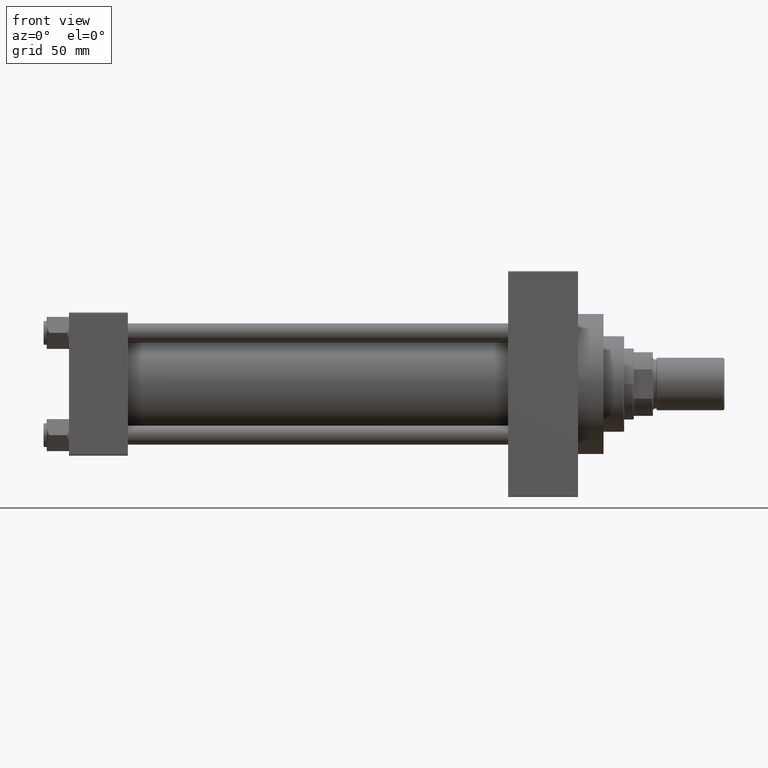
[diagram: clean part render]
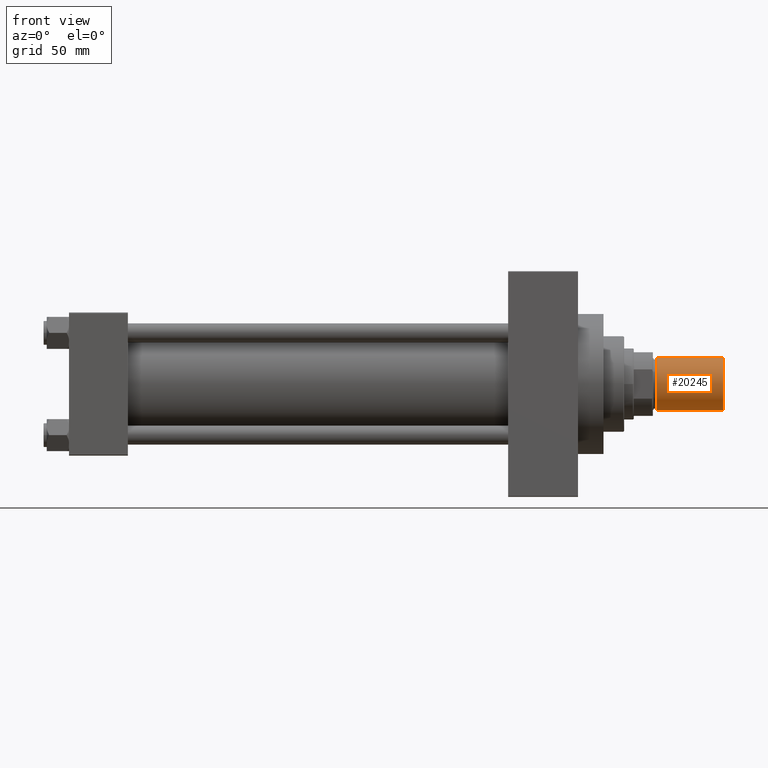
[diagram: same view with one face highlighted and labeled with its STEP entity id]
A machine part, front view. The second image highlights one B-rep face of the part: STEP entity #20245.
In plain terms, the highlighted cylindrical surface (edge-blend (fillet) strip) has radius 16.5 mm, axis along (1, -0, -0).
Its self-contained STEP definition (entity closure, byte-faithful):
#662 = EDGE_CURVE ( 'NONE', #25912, #44295, #40154, .T. ) ;
#4295 = ORIENTED_EDGE ( 'NONE', *, *, #662, .F. ) ;
#4475 = DIRECTION ( 'NONE',  ( -0.000000000000000000, -0.000000000000000000, -1.000000000000000000 ) ) ;
#6910 = DIRECTION ( 'NONE',  ( -0.000000000000000000, -0.000000000000000000, -1.000000000000000000 ) ) ;
#7967 = AXIS2_PLACEMENT_3D ( 'NONE', #15719, #23894, #45584 ) ;
#9479 = ORIENTED_EDGE ( 'NONE', *, *, #23551, .F. ) ;
#10423 = VECTOR ( 'NONE', #32250, 1000.000000000000000 ) ;
#10634 = AXIS2_PLACEMENT_3D ( 'NONE', #18220, #33136, #33380 ) ;
#10747 = CARTESIAN_POINT ( 'NONE',  ( 16.50000000000000000, 2.020667218593133100E-15, 42.50000000000000000 ) ) ;
#12692 = ORIENTED_EDGE ( 'NONE', *, *, #16546, .T. ) ;
#12951 = CIRCLE ( 'NONE', #10634, 16.50000000000000000 ) ;
#13479 = AXIS2_PLACEMENT_3D ( 'NONE', #37485, #4475, #33859 ) ;
#14273 = VERTEX_POINT ( 'NONE', #41606 ) ;
#15719 = CARTESIAN_POINT ( 'NONE',  ( 0.000000000000000000, 0.000000000000000000, 0.8000000000000020428 ) ) ;
#16546 = EDGE_CURVE ( 'NONE', #14273, #44295, #40285, .T. ) ;
#17323 = VECTOR ( 'NONE', #6910, 1000.000000000000000 ) ;
#18220 = CARTESIAN_POINT ( 'NONE',  ( 0.000000000000000000, 0.000000000000000000, 42.50000000000000000 ) ) ;
#20245 = ADVANCED_FACE ( 'NONE', ( #29765 ), #37252, .T. ) ;
#20415 = ORIENTED_EDGE ( 'NONE', *, *, #44723, .T. ) ;
#22035 = CARTESIAN_POINT ( 'NONE',  ( -16.50000000000000000, 0.000000000000000000, 42.50000000000000000 ) ) ;
#22128 = VERTEX_POINT ( 'NONE', #22035 ) ;
#23551 = EDGE_CURVE ( 'NONE', #22128, #25912, #12951, .T. ) ;
#23894 = DIRECTION ( 'NONE',  ( -0.000000000000000000, -0.000000000000000000, 1.000000000000000000 ) ) ;
#25912 = VERTEX_POINT ( 'NONE', #38748 ) ;
#28441 = CARTESIAN_POINT ( 'NONE',  ( 16.50000000000000000, 2.020667218593133100E-15, 0.8000000000000020428 ) ) ;
#29765 = FACE_OUTER_BOUND ( 'NONE', #32519, .T. ) ;
#32250 = DIRECTION ( 'NONE',  ( -0.000000000000000000, -0.000000000000000000, -1.000000000000000000 ) ) ;
#32519 = EDGE_LOOP ( 'NONE', ( #4295, #9479, #20415, #12692 ) ) ;
#33136 = DIRECTION ( 'NONE',  ( 0.000000000000000000, 0.000000000000000000, 1.000000000000000000 ) ) ;
#33380 = DIRECTION ( 'NONE',  ( 1.000000000000000000, 0.000000000000000000, 0.000000000000000000 ) ) ;
#33859 = DIRECTION ( 'NONE',  ( -1.000000000000000000, 0.000000000000000000, 0.000000000000000000 ) ) ;
#37252 = CYLINDRICAL_SURFACE ( 'NONE', #13479, 16.50000000000000000 ) ;
#37485 = CARTESIAN_POINT ( 'NONE',  ( 0.000000000000000000, 0.000000000000000000, 42.50000000000000000 ) ) ;
#38748 = CARTESIAN_POINT ( 'NONE',  ( 16.50000000000000000, 2.020667218593133100E-15, 42.50000000000000000 ) ) ;
#40154 = LINE ( 'NONE', #10747, #17323 ) ;
#40285 = CIRCLE ( 'NONE', #7967, 16.50000000000000000 ) ;
#41606 = CARTESIAN_POINT ( 'NONE',  ( -16.50000000000000000, 0.000000000000000000, 0.8000000000000020428 ) ) ;
#43110 = LINE ( 'NONE', #43345, #10423 ) ;
#43345 = CARTESIAN_POINT ( 'NONE',  ( -16.50000000000000000, 0.000000000000000000, 42.50000000000000000 ) ) ;
#44295 = VERTEX_POINT ( 'NONE', #28441 ) ;
#44723 = EDGE_CURVE ( 'NONE', #22128, #14273, #43110, .T. ) ;
#45584 = DIRECTION ( 'NONE',  ( 1.000000000000000000, 0.000000000000000000, 0.000000000000000000 ) ) ;